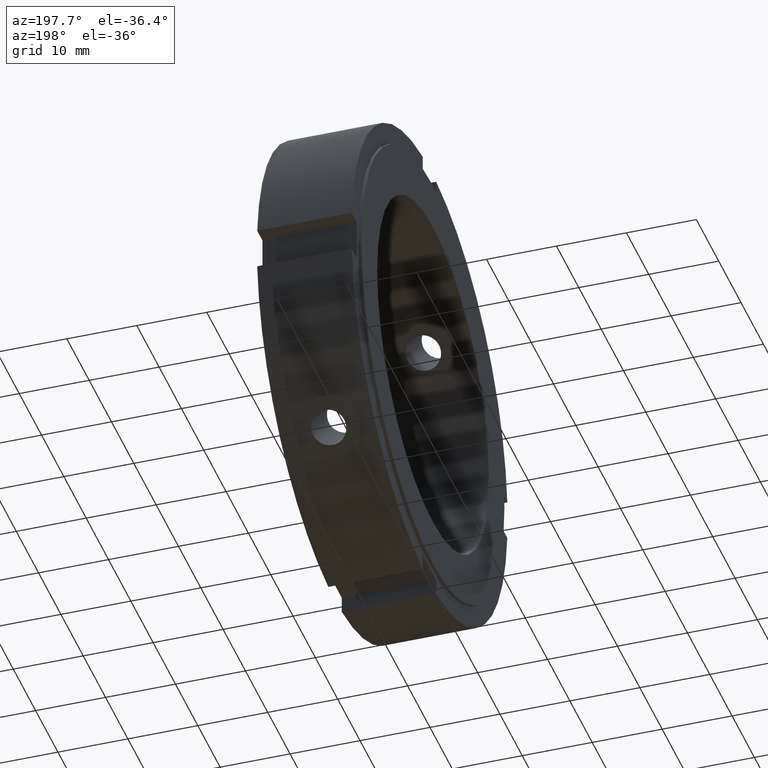
[diagram: clean part render]
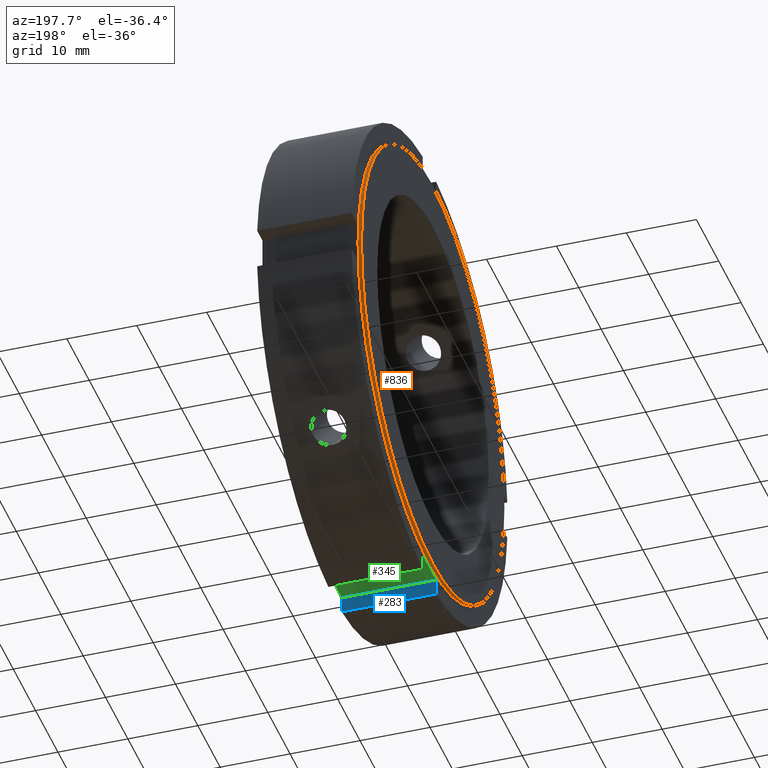
[diagram: same view with three faces highlighted in distinct colors, each labeled with its STEP entity id]
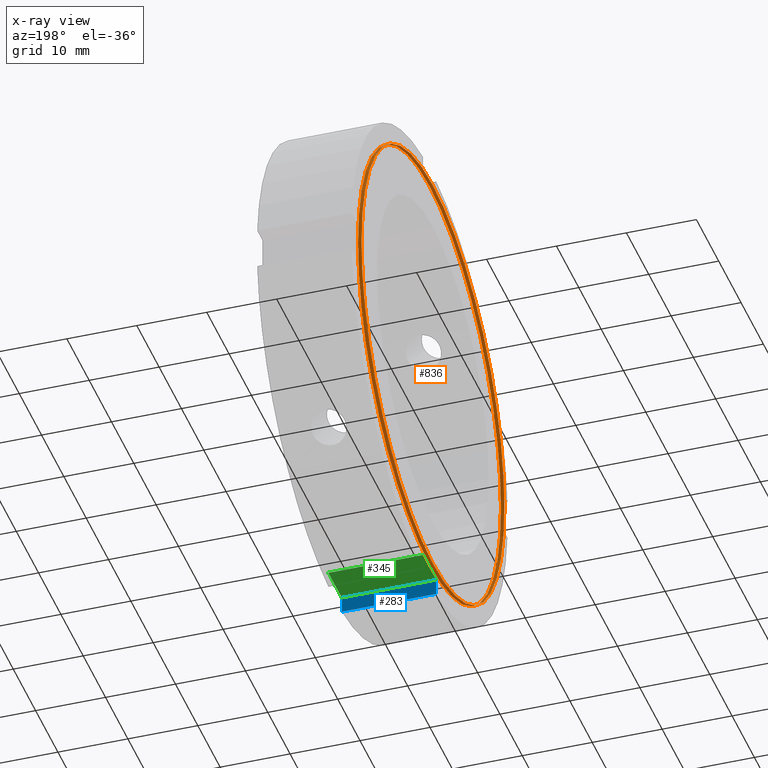
[diagram: x-ray of the same camera — body ghosted, the three highlighted faces saturated]
A machine part, auxiliary view with three faces highlighted in distinct colors.
The next image is the same camera in x-ray (body ghosted, the three faces saturated) — at least one of them is partly hidden behind the body in this view.
Their STEP definitions:

[orange] entity #836 — the highlighted cylindrical surface (bore or boss wall) has radius 32 mm, axis along (1, 0, 0).
#794=CARTESIAN_POINT('',(-8.881784E-015,32.0,0.0));
#795=VERTEX_POINT('',#794);
#796=CARTESIAN_POINT('',(-8.881784E-015,0.0,0.0));
#797=DIRECTION('',(1.0,0.0,0.0));
#798=DIRECTION('',(0.0,1.0,0.0));
#799=AXIS2_PLACEMENT_3D('',#796,#797,#798);
#800=CIRCLE('',#799,32.0);
#801=EDGE_CURVE('',#795,#795,#800,.T.);
#817=CARTESIAN_POINT('',(0.249999999999991,0.0,0.0));
#818=DIRECTION('',(1.0,0.0,0.0));
#819=DIRECTION('',(0.0,1.0,0.0));
#820=AXIS2_PLACEMENT_3D('',#817,#818,#819);
#821=CYLINDRICAL_SURFACE('',#820,32.0);
#822=CARTESIAN_POINT('',(0.499999999999992,32.0,0.0));
#823=VERTEX_POINT('',#822);
#824=CARTESIAN_POINT('',(0.499999999999992,0.0,0.0));
#825=DIRECTION('',(1.0,0.0,0.0));
#826=DIRECTION('',(0.0,1.0,0.0));
#827=AXIS2_PLACEMENT_3D('',#824,#825,#826);
#828=CIRCLE('',#827,32.0);
#829=EDGE_CURVE('',#823,#823,#828,.T.);
#830=ORIENTED_EDGE('',*,*,#829,.F.);
#831=EDGE_LOOP('',(#830));
#832=FACE_OUTER_BOUND('',#831,.T.);
#833=ORIENTED_EDGE('',*,*,#801,.T.);
#834=EDGE_LOOP('',(#833));
#835=FACE_BOUND('',#834,.T.);
#836=ADVANCED_FACE('',(#832,#835),#821,.T.);

[blue] entity #283 — the highlighted planar face has unit normal (0, -1, 0).
#244=CARTESIAN_POINT('',(13.999999999999995,-3.000000000000005,-32.500000000000000));
#245=DIRECTION('',(0.0,-1.0,0.0));
#246=DIRECTION('',(-1.0,0.0,0.0));
#247=AXIS2_PLACEMENT_3D('',#244,#245,#246);
#248=PLANE('',#247);
#249=CARTESIAN_POINT('',(0.499999999999994,-3.000000000000005,-32.500000000000000));
#250=VERTEX_POINT('',#249);
#251=CARTESIAN_POINT('',(0.499999999999994,-3.000000000000005,-34.871191548325385));
#252=VERTEX_POINT('',#251);
#253=CARTESIAN_POINT('',(0.499999999999993,-3.000000000000008,-32.500000000000000));
#254=DIRECTION('',(0.0,0.0,-1.0));
#255=VECTOR('',#254,2.371191548325385);
#256=LINE('',#253,#255);
#257=EDGE_CURVE('',#250,#252,#256,.T.);
#258=ORIENTED_EDGE('',*,*,#257,.F.);
#259=CARTESIAN_POINT('',(13.999999999999995,-3.000000000000005,-32.500000000000000));
#260=VERTEX_POINT('',#259);
#261=CARTESIAN_POINT('',(13.999999999999995,-3.000000000000005,-32.500000000000000));
#262=DIRECTION('',(-1.0,0.0,0.0));
#263=VECTOR('',#262,13.500000000000000);
#264=LINE('',#261,#263);
#265=EDGE_CURVE('',#260,#250,#264,.T.);
#266=ORIENTED_EDGE('',*,*,#265,.F.);
#267=CARTESIAN_POINT('',(13.999999999999995,-3.000000000000005,-34.871191548325385));
#268=VERTEX_POINT('',#267);
#269=CARTESIAN_POINT('',(13.999999999999995,-3.000000000000008,-34.871191548325385));
#270=DIRECTION('',(0.0,0.0,1.0));
#271=VECTOR('',#270,2.371191548325385);
#272=LINE('',#269,#271);
#273=EDGE_CURVE('',#268,#260,#272,.T.);
#274=ORIENTED_EDGE('',*,*,#273,.F.);
#275=CARTESIAN_POINT('',(0.499999999999994,-3.000000000000005,-34.871191548325385));
#276=DIRECTION('',(1.0,0.0,0.0));
#277=VECTOR('',#276,13.500000000000000);
#278=LINE('',#275,#277);
#279=EDGE_CURVE('',#252,#268,#278,.T.);
#280=ORIENTED_EDGE('',*,*,#279,.F.);
#281=EDGE_LOOP('',(#258,#266,#274,#280));
#282=FACE_OUTER_BOUND('',#281,.T.);
#283=ADVANCED_FACE('',(#282),#248,.F.);

[green] entity #345 — the highlighted planar face has unit normal (0, 0, 1).
#249=CARTESIAN_POINT('',(0.499999999999994,-3.000000000000005,-32.500000000000000));
#250=VERTEX_POINT('',#249);
#259=CARTESIAN_POINT('',(13.999999999999995,-3.000000000000005,-32.500000000000000));
#260=VERTEX_POINT('',#259);
#261=CARTESIAN_POINT('',(13.999999999999995,-3.000000000000005,-32.500000000000000));
#262=DIRECTION('',(-1.0,0.0,0.0));
#263=VECTOR('',#262,13.500000000000000);
#264=LINE('',#261,#263);
#265=EDGE_CURVE('',#260,#250,#264,.T.);
#291=CARTESIAN_POINT('',(0.499999999999994,2.999999999999993,-32.500000000000000));
#292=VERTEX_POINT('',#291);
#307=CARTESIAN_POINT('',(13.999999999999995,2.999999999999993,-32.500000000000000));
#308=VERTEX_POINT('',#307);
#315=CARTESIAN_POINT('',(13.999999999999995,2.999999999999993,-32.500000000000000));
#316=DIRECTION('',(-1.0,0.0,0.0));
#317=VECTOR('',#316,13.500000000000000);
#318=LINE('',#315,#317);
#319=EDGE_CURVE('',#308,#292,#318,.T.);
#324=CARTESIAN_POINT('',(13.999999999999995,2.999999999999993,-32.500000000000000));
#325=DIRECTION('',(0.0,0.0,1.0));
#326=DIRECTION('',(0.0,-1.0,0.0));
#327=AXIS2_PLACEMENT_3D('',#324,#325,#326);
#328=PLANE('',#327);
#329=CARTESIAN_POINT('',(0.499999999999993,2.999999999999993,-32.500000000000000));
#330=DIRECTION('',(0.0,-1.0,0.0));
#331=VECTOR('',#330,6.0);
#332=LINE('',#329,#331);
#333=EDGE_CURVE('',#292,#250,#332,.T.);
#334=ORIENTED_EDGE('',*,*,#333,.F.);
#335=ORIENTED_EDGE('',*,*,#319,.F.);
#336=CARTESIAN_POINT('',(13.999999999999995,-3.000000000000007,-32.499999999999993));
#337=DIRECTION('',(0.0,1.0,0.0));
#338=VECTOR('',#337,6.0);
#339=LINE('',#336,#338);
#340=EDGE_CURVE('',#260,#308,#339,.T.);
#341=ORIENTED_EDGE('',*,*,#340,.F.);
#342=ORIENTED_EDGE('',*,*,#265,.T.);
#343=EDGE_LOOP('',(#334,#335,#341,#342));
#344=FACE_OUTER_BOUND('',#343,.T.);
#345=ADVANCED_FACE('',(#344),#328,.F.);